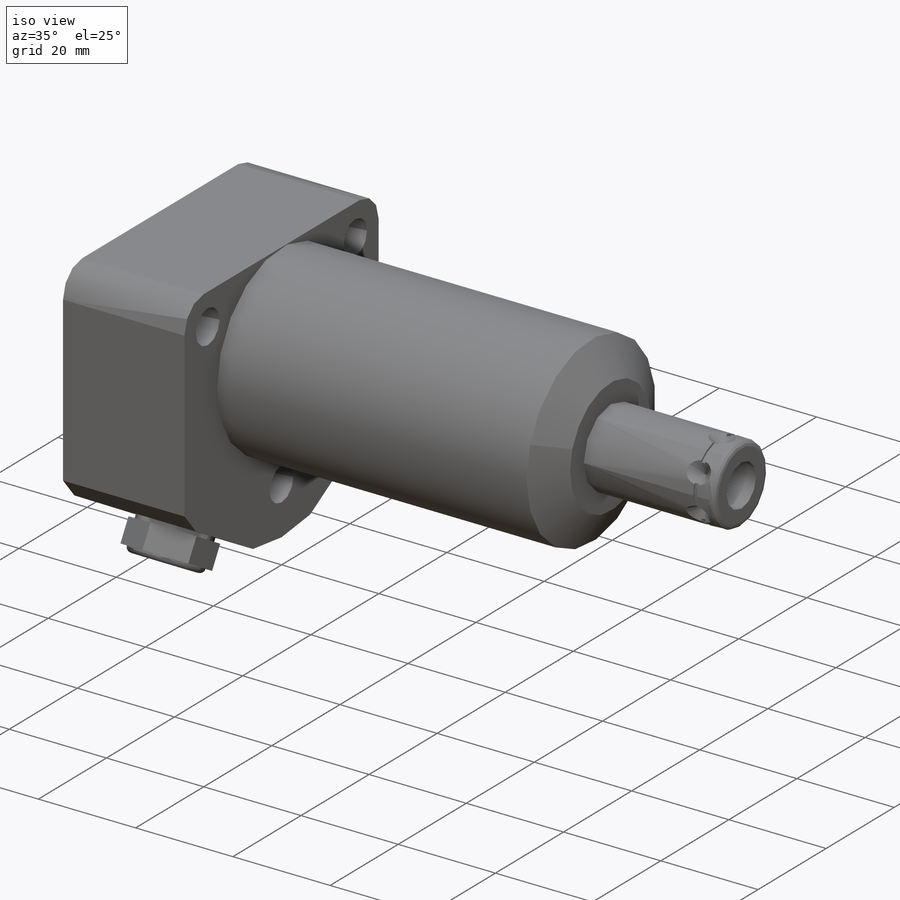
[diagram: iso view]
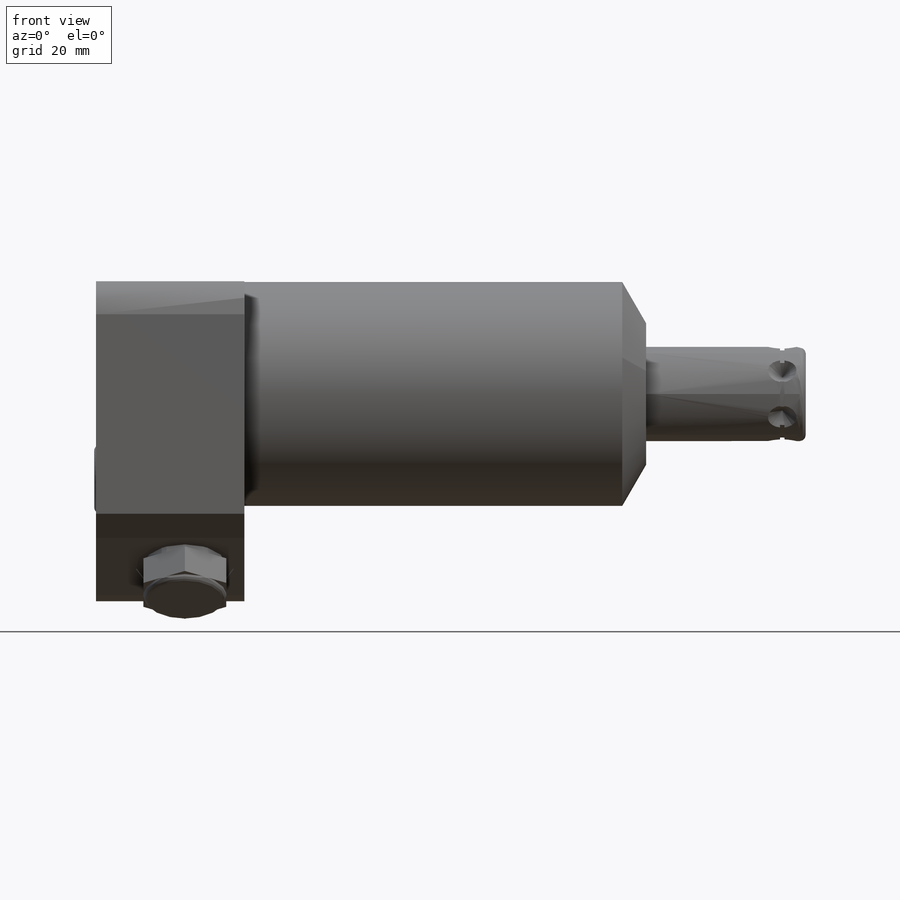
[diagram: front view]
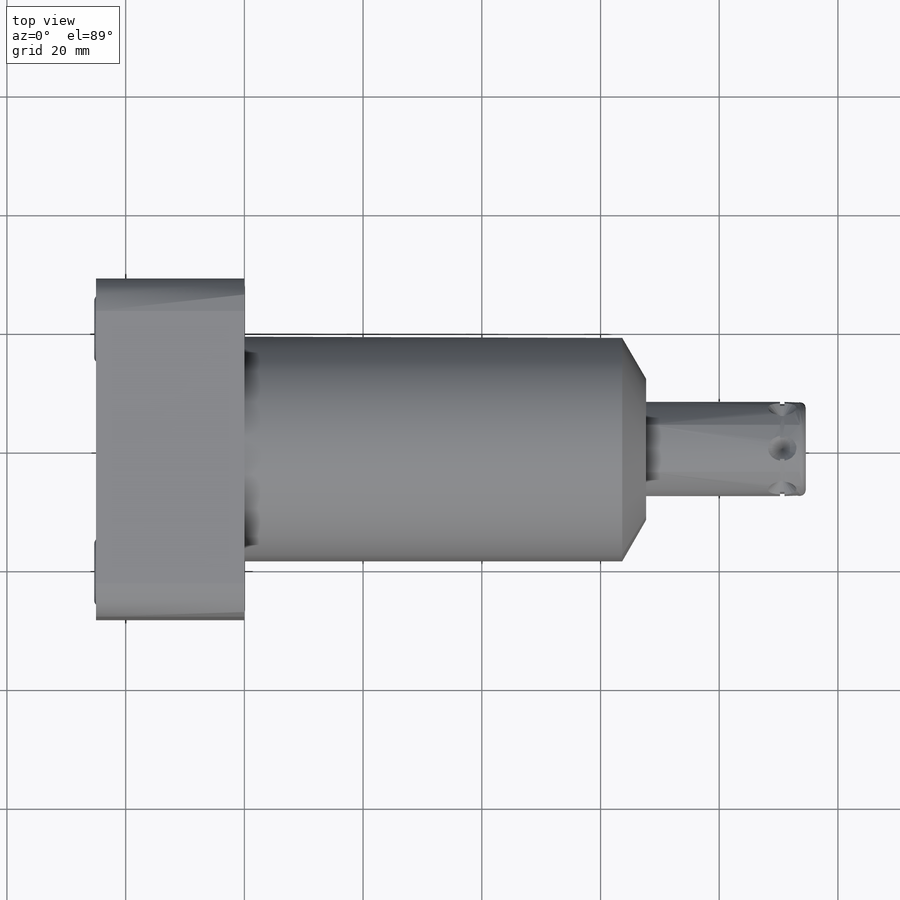
[diagram: top view]
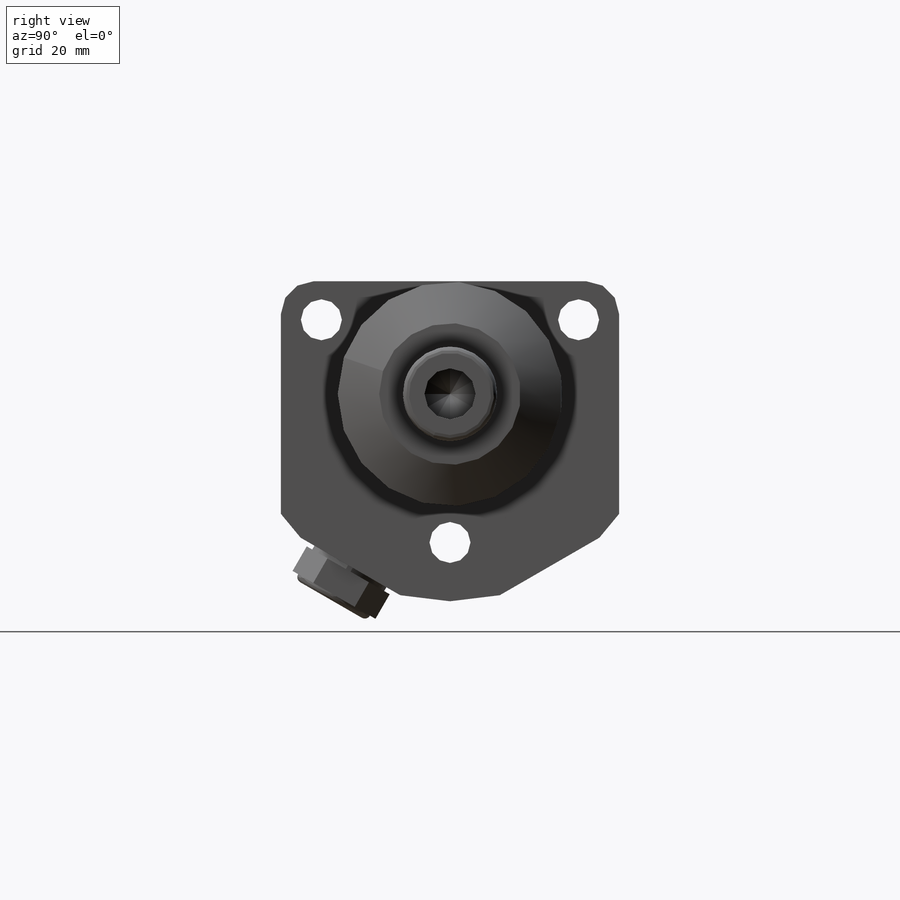
[diagram: right view]
SOLIDWORKS PART (.sldprt)
format: sldprt  version: not decoded by parser v0  size: 553,984 bytes
history: native  units: mm
features: sketch x16, cut_revolve x7, extrude x3, mirror x3, cut_extrude x2, plane x2, revolve x2, material x1, chamfer x1, fillet x1, hole x1, pattern_circular x1 (+11 scaffold rows collapsed)
feature tree (51):
  scaffold x11  (default folders/planes/origin — collapsed)
  material  "Alloy Steel"
  sketch  "Sketch1"  dims[c1.D6=34.925mm c1.D1=56.9976mm c1.D2=30.836mm c1.D3=56.9976mm c1.D4=18.9992mm c1.D5=~15.126613mm c2.D5=30.0deg c2.D2=33.553mm c3.D5=~90.923784mm c4.D5=30.0deg c4.D6=22.5044mm c4.D2=33.5534mm]
  extrude  "Extrude1"  Depth=67.691mm
  sketch  "Sketch2"  dims[D2=37.846mm D1=0.0mm]
  cut_extrude  "Cut-Extrude1"  [1 undecoded]
  sketch  "Sketch3"  dims[c1.D1=5.3594mm c2.D1=30.0deg c2.D2=23.876mm]
  cut_revolve  "Cut-Revolve1"  Angle=360deg
  plane  "Plane19"  Offset=20.4724mm
  sketch  "S2D0002"  dims[c1.D1=11.9888mm c1.D2=14.3256mm c2.D1=1.4478mm c2.D3=11.4046mm c2.D4=6.5024mm c2.D5=2.4892mm c2.D6=8.9916mm c2.D7=2.9972mm]
  cut_revolve  "Cut-Revolve2"  Angle=360deg
  plane  "Plane20"  Offset=10.033mm
  sketch  "Sketch6"  dims[c1.D1=0.254mm c1.D2=16.5mm c1.D3=0.5334mm c2.D3=45.0deg c2.D4=0.6604mm c2.D5=9.906mm c2.D6=8.8392mm c2.D7=10.5664mm c2.D8=0.127mm]
  cut_revolve  "Cut-Revolve4"  Angle=360deg
  mirror  "Mirror1"
  sketch  "Sketch7"  dims[D3=1.016mm D1=119.57mm D2=15.875mm]
  revolve  "Revolve1"  Angle=360deg
  sketch  "S2D0001"  dims[c1.D1=8.6106mm c1.D2=15.24mm c1.D3=2.5273mm c2.D3=59.0deg]
  cut_revolve  "Cut-Revolve8"  Angle=360deg
  sketch  "Sketch9"  dims[c1.D1=3.9624mm c1.D2=~2.245064mm c2.D2=45.0deg c2.D3=4.826mm]
  cut_revolve  "Cut-Revolve9"  Angle=360deg
  sketch  "Sketch11"  dims[D1=0.762mm D2=0.381mm]
  cut_revolve  "Cut-Revolve5"  Angle=360deg
  sketch  "Sketch12"  dims[D1=14.0mm D2=13.97mm]
  extrude  "Extrude2"  Depth=6.78mm
  sketch  "Sketch13"  dims[D3=1.0mm D1=1.0mm D2=16.5mm D4=1.0mm D5=16.5mm D6=14.0mm]
  cut_revolve  "Cut-Revolve6"  Angle=360deg
  sketch  "Sketch15"  dims[D1=5.4864mm]
  extrude  "Extrude3"  Depth=2.9972mm
  sketch  "Sketch16"  dims[D1=2.4892mm]
  cut_extrude  "Cut-Extrude2"  Depth=2.54mm
  chamfer  "Chamfer1"  Distance=0.381mm Angle=45deg
  mirror  "Mirror2"
  sketch  "Sketch21"  dims[D1=1.778mm D2=9.6266mm D3=0.8636mm]
  revolve  "Revolve4"  Angle=360deg
  mirror  "Mirror3"
  fillet  "Fillet1"  Radius=5.5626mm
  hole  "Hole1"  Diameter=6.9088mm Depth=24.9936mm
  sketch  "Sketch23"  dims[D1=25.019mm D2=12.4968mm D3=21.6662mm]
  sketch  "Sketch22"  dims[Diameter=6.9088mm Depth=24.9936mm]
  pattern_circular  "CirPattern1"  Count=6 Angle=360deg
decode coverage: 33 of 37 modeling features carry decoded parameters
note: ~ marks probable driven/reference dimensions
note: 1 parameter value undecoded
note: suppression state not decoded; provenance and decode notes live in map.json
